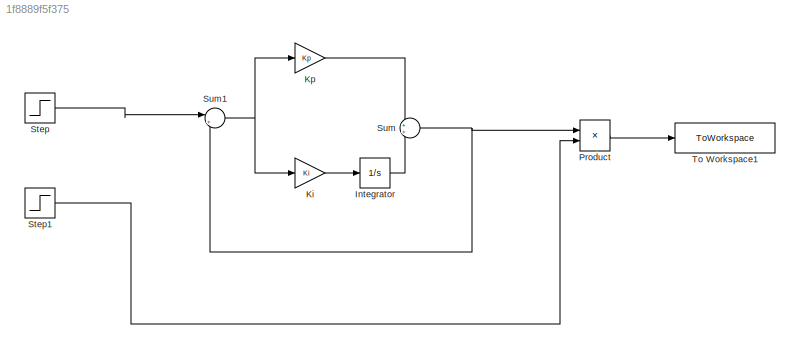
MODEL slx_1f8889f5f375
KIND model
CONFIG AbsTol = auto
CONFIG EnableMultiTasking = off
CONFIG FixedStep = auto
CONFIG MaxStep = auto
CONFIG MinStep = auto
CONFIG RelTol = 1e-3
CONFIG SampleTimeConstraint = Unconstrained
CONFIG SolverName = VariableStepAuto
CONFIG StartTime = 0.0
CONFIG StopTime = 10.0
BLOCK [Integrator] Integrator
  Ports = [1, 1]
BLOCK [Gain] Ki
  Gain = Ki
BLOCK [Gain] Kp
  Gain = Kp
BLOCK [Product] Product
  Ports = [2, 1]
BLOCK [Step] Step
  After = SetpointCl
  SampleTime = 0
BLOCK [Step] Step1
  After = 0
  Before = 1
  SampleTime = 0
  Time = 9
BLOCK [Sum] Sum
  Ports = [2, 1]
BLOCK [Sum] Sum1
  Inputs = |+-
  Ports = [2, 1]
BLOCK [ToWorkspace] To Workspace1
  FixptAsFi = on
  MaxDataPoints = inf
  Ports = [1]
  SampleTime = -1
  VariableName = outputReadCl
LINE Integrator:1 -> Sum:2
LINE Ki:1 -> Integrator:1
LINE Kp:1 -> Sum:1
LINE Product:1 -> To Workspace1:1
LINE Step1:1 -> Product:2
LINE Step:1 -> Sum1:1
NET Sum1:1 -> Ki:1, Kp:1
NET Sum:1 -> Product:1, Sum1:2
note: NET lines group one-source signal fan-out (src -> all destinations, sorted); 1:1 wires keep LINE
